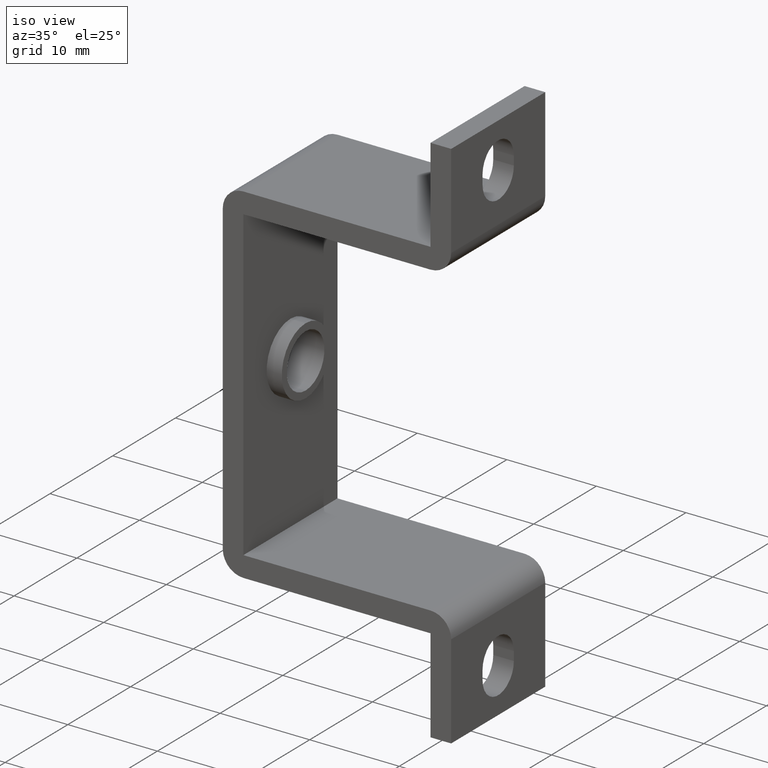
[diagram: clean part render]
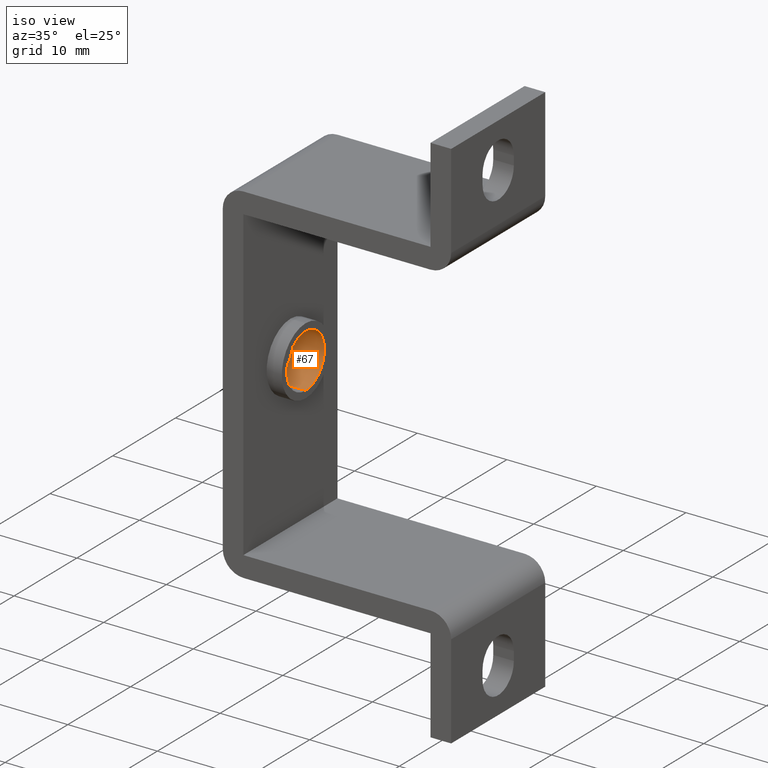
[diagram: same view with one face highlighted and labeled with its STEP entity id]
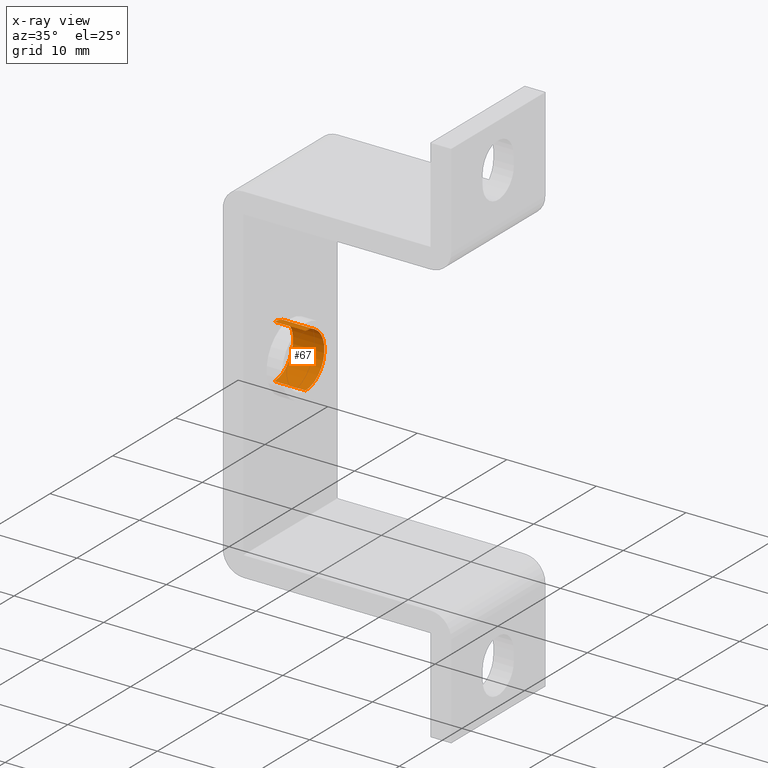
[diagram: x-ray of the same camera — body ghosted, the highlighted face saturated]
A machine part, iso view. The second image highlights one B-rep face of the part: STEP entity #67.
The next image is the same camera in x-ray: the body ghosted, the highlighted face saturated — about 0% of this face is hidden behind the body in this view.
In plain terms, the highlighted cylindrical surface (edge-blend (fillet) strip) has radius 3 mm, axis along (-1, 0, -0).
Its self-contained STEP definition (entity closure, byte-faithful):
#67=ADVANCED_FACE('',(#351),#350,.F.);
#350=CYLINDRICAL_SURFACE('',#555,3.00000000000E+00);
#351=FACE_OUTER_BOUND('',#556,.T.);
#552=CARTESIAN_POINT('',(-2.09500007629E+01,-7.50000000000E+00,3.00000000000E+01));
#553=DIRECTION('',(-1.00000000000E+00,0.00000000000E+00,-0.00000000000E+00));
#554=DIRECTION('',(-0.00000000000E+00,-0.00000000000E+00,1.00000000000E+00));
#555=AXIS2_PLACEMENT_3D('',#552,#553,#554);
#556=EDGE_LOOP('',(#776,#777,#778,#779));
#776=ORIENTED_EDGE('',*,*,#803,.F.);
#777=ORIENTED_EDGE('',*,*,#880,.T.);
#778=ORIENTED_EDGE('',*,*,#881,.T.);
#779=ORIENTED_EDGE('',*,*,#882,.F.);
#803=EDGE_CURVE('',#903,#902,#910,.T.);
#880=EDGE_CURVE('',#903,#1424,#1425,.T.);
#881=EDGE_CURVE('',#1424,#1431,#1432,.T.);
#882=EDGE_CURVE('',#902,#1431,#1438,.T.);
#902=VERTEX_POINT('',#1484);
#903=VERTEX_POINT('',#1485);
#910=CIRCLE('',#1493,3.00000000000E+00);
#1424=VERTEX_POINT('',#1794);
#1425=(BOUNDED_CURVE() B_SPLINE_CURVE(1,(#1795,#1796),.UNSPECIFIED.,.F.,.F.) B_SPLINE_CURVE_WITH_KNOTS((2,2),(8.33333358172E-02,9.16666664408E-01),.UNSPECIFIED.) CURVE() GEOMETRIC_REPRESENTATION_ITEM() RATIONAL_B_SPLINE_CURVE((1.00000000000E+00,1.00000000000E+00)) REPRESENTATION_ITEM('') );
#1431=VERTEX_POINT('',#1797);
#1432=CIRCLE('',#1801,3.00000000000E+00);
#1438=(BOUNDED_CURVE() B_SPLINE_CURVE(1,(#1802,#1803),.UNSPECIFIED.,.F.,.F.) B_SPLINE_CURVE_WITH_KNOTS((2,2),(8.33333333333E-02,9.16666666667E-01),.UNSPECIFIED.) CURVE() GEOMETRIC_REPRESENTATION_ITEM() RATIONAL_B_SPLINE_CURVE((7.50000000000E-01,7.50000000000E-01)) REPRESENTATION_ITEM('') );
#1484=CARTESIAN_POINT('',(-1.92000000000E+01,-7.50000000000E+00,2.70000000000E+01));
#1485=CARTESIAN_POINT('',(-1.92000000000E+01,-7.50000000000E+00,3.30000000000E+01));
#1490=CARTESIAN_POINT('',(-1.92000000000E+01,-7.50000000000E+00,3.00000000000E+01));
#1491=DIRECTION('',(-1.00000000000E+00,0.00000000000E+00,0.00000000000E+00));
#1492=DIRECTION('',(-0.00000000000E+00,-0.00000000000E+00,-1.00000000000E+00));
#1493=AXIS2_PLACEMENT_3D('',#1490,#1491,#1492);
#1794=CARTESIAN_POINT('',(-2.27000000000E+01,-7.50000000000E+00,3.30000000000E+01));
#1795=CARTESIAN_POINT('',(-1.92000000104E+01,-7.50000000000E+00,3.30000000000E+01));
#1796=CARTESIAN_POINT('',(-2.26999999905E+01,-7.50000000000E+00,3.30000000000E+01));
#1797=CARTESIAN_POINT('',(-2.27000000000E+01,-7.50000000000E+00,2.70000000000E+01));
#1798=CARTESIAN_POINT('',(-2.27000000000E+01,-7.50000000000E+00,3.00000000000E+01));
#1799=DIRECTION('',(-1.00000000000E+00,0.00000000000E+00,-0.00000000000E+00));
#1800=DIRECTION('',(0.00000000000E+00,1.22460635382E-16,-1.00000000000E+00));
#1801=AXIS2_PLACEMENT_3D('',#1798,#1799,#1800);
#1802=CARTESIAN_POINT('',(-1.92000000000E+01,-7.50000000000E+00,2.70000000000E+01));
#1803=CARTESIAN_POINT('',(-2.27000000000E+01,-7.50000000000E+00,2.70000000000E+01));